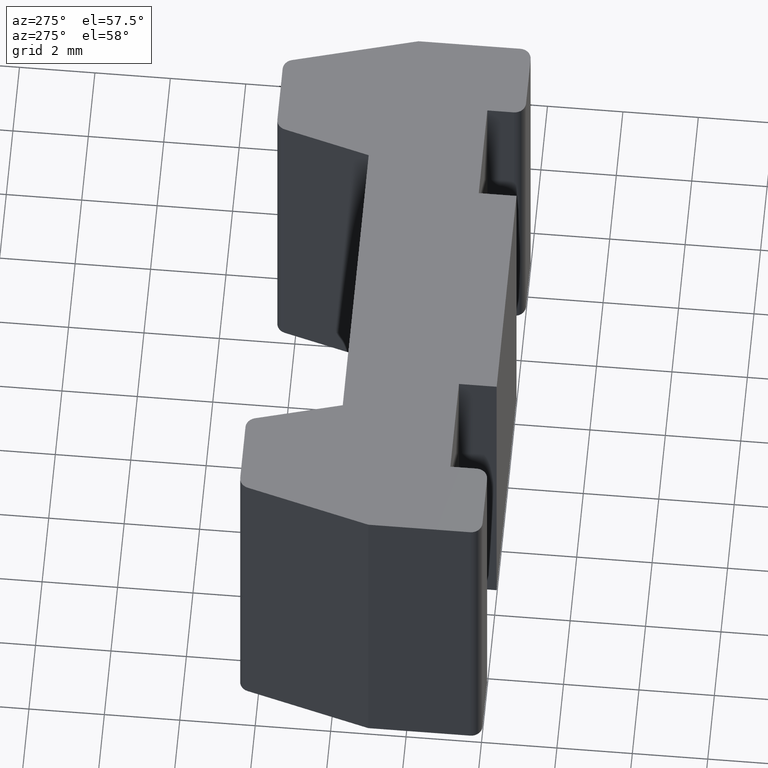
[diagram: clean part render]
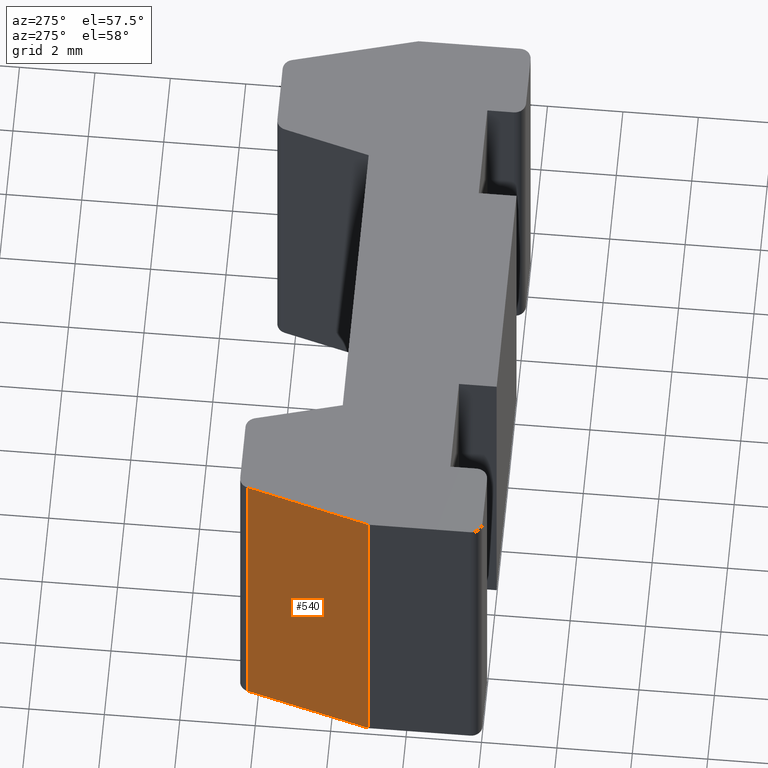
[diagram: same view with one face highlighted and labeled with its STEP entity id]
A machine part, auxiliary view. The second image highlights one B-rep face of the part: STEP entity #540.
In plain terms, the highlighted planar face has unit normal (-0.9659, 0.2588, 0).
Its self-contained STEP definition (entity closure, byte-faithful):
#22=PLANE('',#607);
#50=FACE_OUTER_BOUND('',#78,.T.);
#78=EDGE_LOOP('',(#443,#444,#445,#446));
#95=LINE('',#790,#157);
#130=LINE('',#885,#192);
#132=LINE('',#889,#194);
#133=LINE('',#891,#195);
#157=VECTOR('',#636,10.);
#192=VECTOR('',#721,10.);
#194=VECTOR('',#725,10.);
#195=VECTOR('',#728,10.);
#237=VERTEX_POINT('',#787);
#238=VERTEX_POINT('',#789);
#273=VERTEX_POINT('',#883);
#274=VERTEX_POINT('',#887);
#290=EDGE_CURVE('',#238,#237,#95,.T.);
#338=EDGE_CURVE('',#238,#273,#130,.T.);
#340=EDGE_CURVE('',#237,#274,#132,.T.);
#341=EDGE_CURVE('',#274,#273,#133,.T.);
#443=ORIENTED_EDGE('',*,*,#338,.F.);
#444=ORIENTED_EDGE('',*,*,#290,.T.);
#445=ORIENTED_EDGE('',*,*,#340,.T.);
#446=ORIENTED_EDGE('',*,*,#341,.T.);
#540=ADVANCED_FACE('',(#50),#22,.T.);
#607=AXIS2_PLACEMENT_3D('',#890,#726,#727);
#636=DIRECTION('',(-0.258819045102521,-0.965925826289068,0.));
#721=DIRECTION('',(0.,0.,1.));
#725=DIRECTION('',(0.,0.,1.));
#726=DIRECTION('center_axis',(-0.965925826289068,0.258819045102521,0.));
#727=DIRECTION('ref_axis',(0.,0.,1.));
#728=DIRECTION('',(0.258819045102521,0.965925826289068,0.));
#787=CARTESIAN_POINT('',(0.,3.,0.));
#789=CARTESIAN_POINT('',(0.878242522015897,6.27764571353076,0.));
#790=CARTESIAN_POINT('',(0.937822173508929,6.5,0.));
#883=CARTESIAN_POINT('',(0.878242522015897,6.27764571353076,10.));
#885=CARTESIAN_POINT('',(0.878242522015897,6.27764571353076,0.));
#887=CARTESIAN_POINT('',(0.,3.,10.));
#889=CARTESIAN_POINT('',(0.,3.,0.));
#890=CARTESIAN_POINT('Origin',(0.,3.,0.));
#891=CARTESIAN_POINT('',(0.937822173508929,6.5,10.));